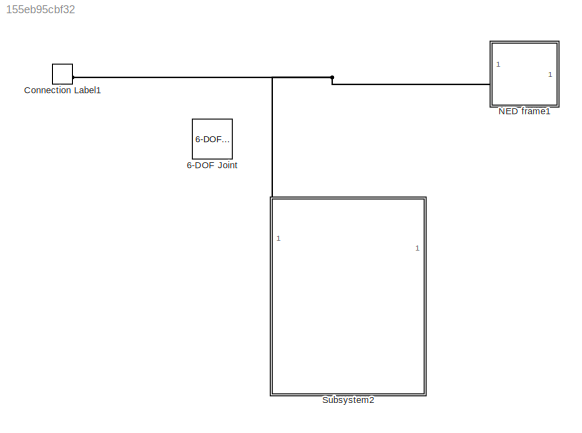
MODEL slx_155eb95cbf32
KIND model
CONFIG AbsTol = 1e-3
CONFIG EnableMultiTasking = on
CONFIG FixedStep = auto
CONFIG MaxStep = auto
CONFIG MinStep = auto
CONFIG RelTol = 1e-3
CONFIG SampleTimeConstraint = Unconstrained
CONFIG SolverName = VariableStepAuto
CONFIG StartTime = 0.0
CONFIG StopTime = 10.0
BLOCK [Reference] 6-DOF Joint  REF=sm_lib/Joints/6-DOF Joint
  SourceBlock = sm_lib/Joints/6-DOF Joint
  SourceType = 6-DOF Joint
BLOCK [ConnectionLabel] Connection Label1
  Label = NED
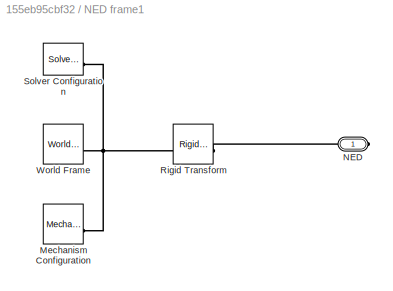
BLOCK [SubSystem] NED frame1
BLOCK [Reference] NED frame1/Mechanism Configuration  REF=sm_lib/Utilities/Mechanism
Configuration
  SourceBlock = sm_lib/Utilities/Mechanism\nConfiguration
  SourceType = Mechanism\nConfiguration
BLOCK [PMIOPort] NED frame1/NED
  Side = Right
BLOCK [Reference] NED frame1/Rigid Transform  REF=sm_lib/Frames and
Transforms/Rigid
Transform
  SourceBlock = sm_lib/Frames and\nTransforms/Rigid\nTransform
  SourceType = Rigid\nTransform
BLOCK [Reference] NED frame1/Solver Configuration  REF=nesl_utility/Solver
Configuration
  SourceBlock = nesl_utility/Solver\nConfiguration
  SourceType = Solver\nConfiguration
BLOCK [Reference] NED frame1/World Frame  REF=sm_lib/Frames and
Transforms/World Frame
  SourceBlock = sm_lib/Frames and\nTransforms/World Frame
  SourceType = World Frame
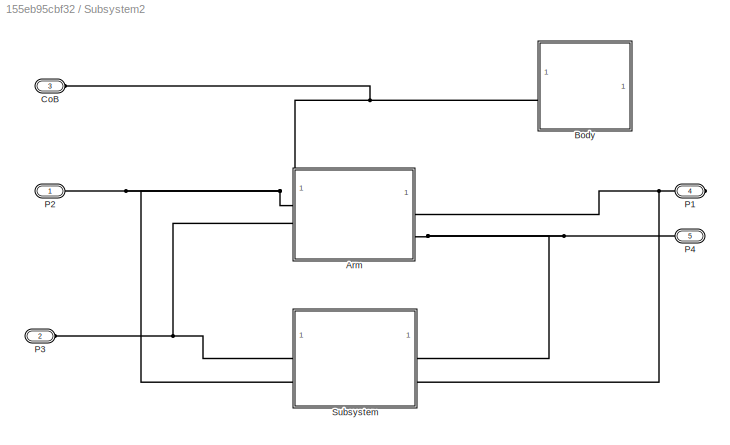
BLOCK [SubSystem] Subsystem2
  PortSchema = {"entries":[{"content":{"sides":[{"content":{"connectorIds":["LConn1","LConn2"]},"type":"ConnectorPlacement.EquallySpacedRectSide","uuid":"07ec55b2-317f-4d55-95d7-45e12bcc936e"},{"content":{"connectorIds":["RConn1","RConn2"],"side":"RIGHT"},"type":"ConnectorPlacement.EquallySpacedRectSide","uuid":"9acc91cd-c790-4146-9adb-f4b2c8db0ec6"},{"content":{"connectorIds":["LConn3"],"side":"TOP"},"type":"Co...<+271ch>
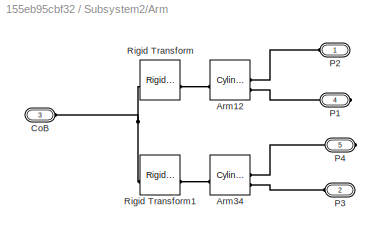
BLOCK [SubSystem] Subsystem2/Arm
  PortSchema = {"entries":[{"content":{"sides":[{"content":{"connectorIds":["LConn1","LConn2"]},"type":"ConnectorPlacement.EquallySpacedRectSide","uuid":"fd9c4580-6f65-487e-8291-a13f41c2f4dd"},{"content":{"connectorIds":["RConn1","RConn2"],"side":"RIGHT"},"type":"ConnectorPlacement.EquallySpacedRectSide","uuid":"56cfd36d-f56c-462a-b70d-f4babc713a50"},{"content":{"connectorIds":["LConn3"],"side":"TOP"},"type":"Co...<+271ch>
BLOCK [Reference] Subsystem2/Arm/Arm12  REF=sm_lib/Body Elements/Cylindrical Solid
  SourceBlock = sm_lib/Body Elements/Cylindrical Solid
  SourceType = Cylindrical Solid
BLOCK [Reference] Subsystem2/Arm/Arm34  REF=sm_lib/Body Elements/Cylindrical Solid
  SourceBlock = sm_lib/Body Elements/Cylindrical Solid
  SourceType = Cylindrical Solid
BLOCK [PMIOPort] Subsystem2/Arm/CoB
  Port = 3
  Side = Left
BLOCK [PMIOPort] Subsystem2/Arm/P1
  Port = 4
  Side = Right
BLOCK [PMIOPort] Subsystem2/Arm/P2
  Side = Left
BLOCK [PMIOPort] Subsystem2/Arm/P3
  Port = 2
  Side = Left
BLOCK [PMIOPort] Subsystem2/Arm/P4
  Port = 5
  Side = Right
BLOCK [Reference] Subsystem2/Arm/Rigid Transform  REF=sm_lib/Frames and
Transforms/Rigid
Transform
  SourceBlock = sm_lib/Frames and\nTransforms/Rigid\nTransform
  SourceType = Rigid\nTransform
BLOCK [Reference] Subsystem2/Arm/Rigid Transform1  REF=sm_lib/Frames and
Transforms/Rigid
Transform
  SourceBlock = sm_lib/Frames and\nTransforms/Rigid\nTransform
  SourceType = Rigid\nTransform
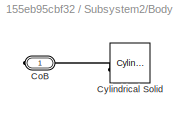
BLOCK [SubSystem] Subsystem2/Body
BLOCK [PMIOPort] Subsystem2/Body/CoB
  Side = Right
BLOCK [Reference] Subsystem2/Body/Cylindrical Solid  REF=sm_lib/Body Elements/Cylindrical Solid
  SourceBlock = sm_lib/Body Elements/Cylindrical Solid
  SourceType = Cylindrical Solid
BLOCK [PMIOPort] Subsystem2/CoB
  Port = 3
  Side = Left
BLOCK [PMIOPort] Subsystem2/P1
  Port = 4
  Side = Right
BLOCK [PMIOPort] Subsystem2/P2
  Side = Left
BLOCK [PMIOPort] Subsystem2/P3
  Port = 2
  Side = Left
BLOCK [PMIOPort] Subsystem2/P4
  Port = 5
  Side = Right
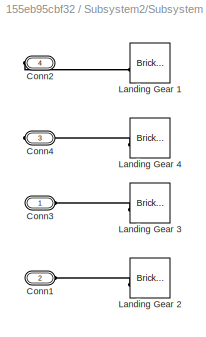
BLOCK [SubSystem] Subsystem2/Subsystem
BLOCK [PMIOPort] Subsystem2/Subsystem/Conn1
  Port = 2
  Side = Left
BLOCK [PMIOPort] Subsystem2/Subsystem/Conn2
  Port = 4
  Side = Right
BLOCK [PMIOPort] Subsystem2/Subsystem/Conn3
  Side = Left
BLOCK [PMIOPort] Subsystem2/Subsystem/Conn4
  Port = 3
  Side = Right
BLOCK [Reference] Subsystem2/Subsystem/Landing Gear 1  REF=sm_lib/Body Elements/Brick Solid
  SourceBlock = sm_lib/Body Elements/Brick Solid
  SourceType = Brick Solid
BLOCK [Reference] Subsystem2/Subsystem/Landing Gear 2  REF=sm_lib/Body Elements/Brick Solid
  SourceBlock = sm_lib/Body Elements/Brick Solid
  SourceType = Brick Solid
BLOCK [Reference] Subsystem2/Subsystem/Landing Gear 3  REF=sm_lib/Body Elements/Brick Solid
  SourceBlock = sm_lib/Body Elements/Brick Solid
  SourceType = Brick Solid
BLOCK [Reference] Subsystem2/Subsystem/Landing Gear 4  REF=sm_lib/Body Elements/Brick Solid
  SourceBlock = sm_lib/Body Elements/Brick Solid
  SourceType = Brick Solid
PNET net1: Connection Label1:LConn1 -- NED frame1:RConn1 -- Subsystem2:LConn3
PNET net2: NED frame1/Mechanism Configuration:RConn1 -- NED frame1/Rigid Transform:LConn1 -- NED frame1/Solver Configuration:RConn1 -- NED frame1/World Frame:RConn1
PLINE NED frame1/NED:RConn1 -- NED frame1/Rigid Transform:RConn1
PLINE Subsystem2/Arm/Arm12:LConn1 -- Subsystem2/Arm/P2:RConn1
PLINE Subsystem2/Arm/Arm12:LConn2 -- Subsystem2/Arm/P1:RConn1
PLINE Subsystem2/Arm/Arm12:RConn1 -- Subsystem2/Arm/Rigid Transform:RConn1
PLINE Subsystem2/Arm/Arm34:LConn1 -- Subsystem2/Arm/P4:RConn1
PLINE Subsystem2/Arm/Arm34:LConn2 -- Subsystem2/Arm/P3:RConn1
PLINE Subsystem2/Arm/Arm34:RConn1 -- Subsystem2/Arm/Rigid Transform1:RConn1
PNET net3: Subsystem2/Arm/CoB:RConn1 -- Subsystem2/Arm/Rigid Transform1:LConn1 -- Subsystem2/Arm/Rigid Transform:LConn1
PNET net4: Subsystem2/Arm:LConn1 -- Subsystem2/P2:RConn1 -- Subsystem2/Subsystem:LConn2
PNET net5: Subsystem2/Arm:LConn2 -- Subsystem2/P3:RConn1 -- Subsystem2/Subsystem:LConn1
PNET net6: Subsystem2/Arm:LConn3 -- Subsystem2/Body:RConn1 -- Subsystem2/CoB:RConn1
PNET net7: Subsystem2/Arm:RConn1 -- Subsystem2/P1:RConn1 -- Subsystem2/Subsystem:RConn2
PNET net8: Subsystem2/Arm:RConn2 -- Subsystem2/P4:RConn1 -- Subsystem2/Subsystem:RConn1
PLINE Subsystem2/Body/CoB:RConn1 -- Subsystem2/Body/Cylindrical Solid:RConn1
PLINE Subsystem2/Subsystem/Conn1:RConn1 -- Subsystem2/Subsystem/Landing Gear 2:LConn1
PLINE Subsystem2/Subsystem/Conn2:RConn1 -- Subsystem2/Subsystem/Landing Gear 1:LConn1
PLINE Subsystem2/Subsystem/Conn3:RConn1 -- Subsystem2/Subsystem/Landing Gear 3:LConn1
PLINE Subsystem2/Subsystem/Conn4:RConn1 -- Subsystem2/Subsystem/Landing Gear 4:LConn1
note: PNET lines group multi-terminal physical nets as a canonical sorted terminal list (undirected conserving connections); 2-terminal nets keep the pairwise PLINE form
